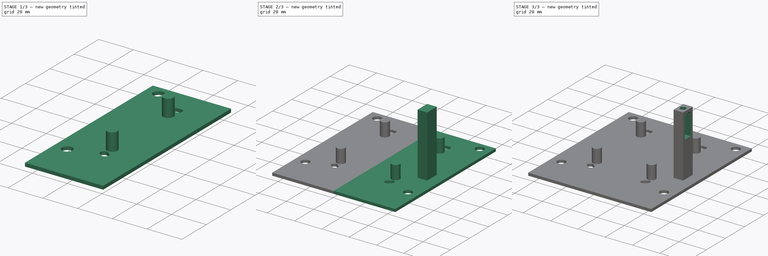
[diagram: build sequence overview — one tinted view per stage of 3, left to right]
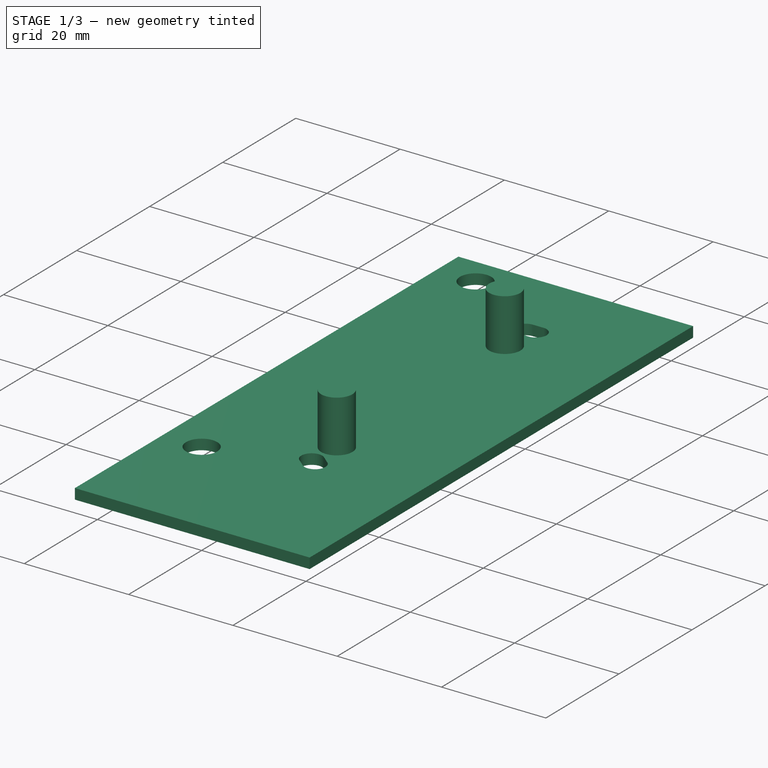
[diagram: stage 1 of 3 — iso view after this stage's code; geometry added in this stage tinted green]
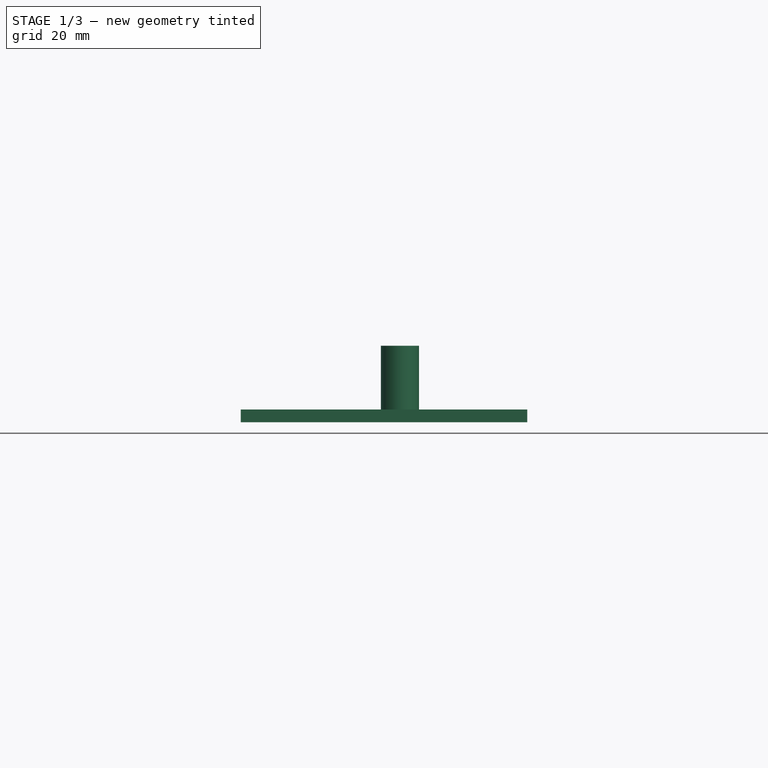
[diagram: stage 1 of 3 — front view after this stage's code; geometry added in this stage tinted green]
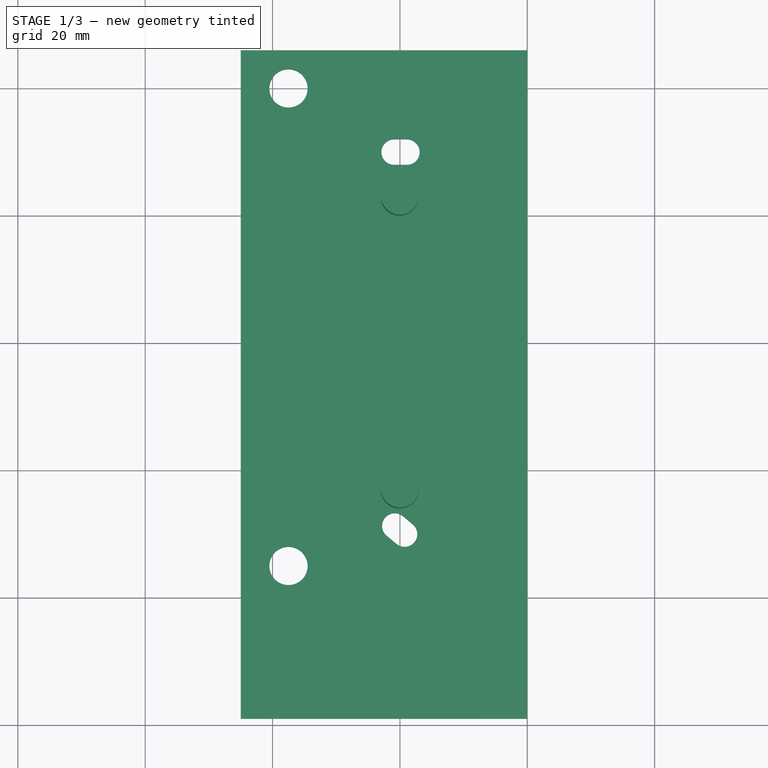
[diagram: stage 1 of 3 — top view after this stage's code; geometry added in this stage tinted green]
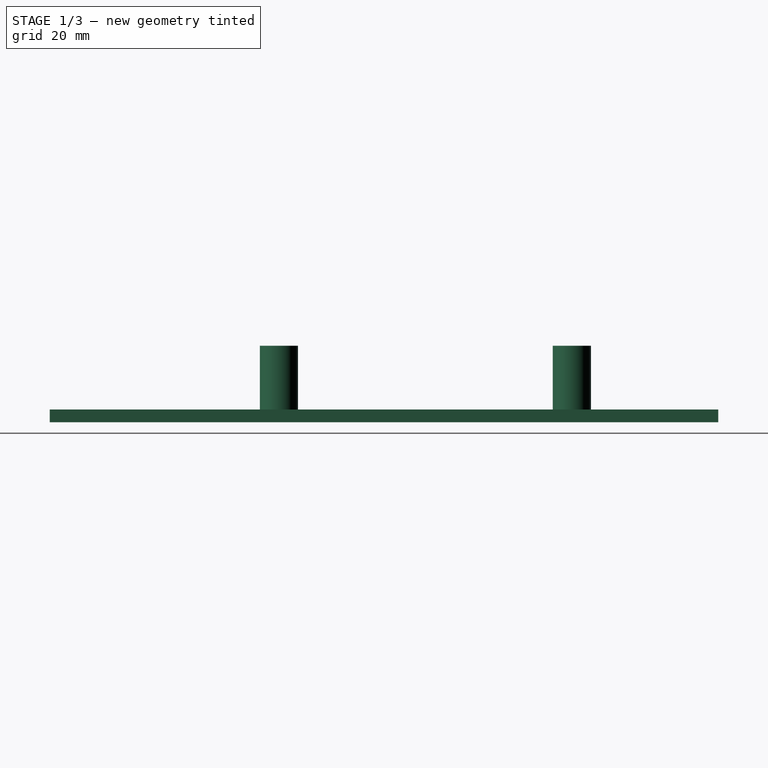
[diagram: stage 1 of 3 — right view after this stage's code; geometry added in this stage tinted green]
FCSTD DOCUMENT  (FreeCAD 0.18.4R)
Label: stabilizer
License: All rights reserved
LicenseURL: http://en.wikipedia.org/wiki/All_rights_reserved
objects: Sketcher::SketchObject×5, PartDesign::Pad×3, PartDesign::Mirrored×2, PartDesign::Pocket×2, PartDesign::Body×1
note: 18 computed .brp shape members not serialized (recipe doc carries the construction recipe); baked Part::Feature solids carry a one-line shape summary decoded from their .brp

FEATURE [Sketcher::SketchObject] Sketch001
  MapMode = 5
  Placement = pos=(0,0,10) rot=(0,0,1;0rad)
  sketch-geometry (25):
    g0: ArcOfCircle CenterX=-20.9 CenterY=30 CenterZ=0 NormalX=0 NormalY=0 NormalZ=1 AngleXU=0 Radius=2 StartAngle=1.5708 EndAngle=4.71239
    g1: ArcOfCircle CenterX=-18.9 CenterY=30 CenterZ=0 NormalX=0 NormalY=0 NormalZ=1 AngleXU=0 Radius=2 StartAngle=4.71239 EndAngle=7.85398
    g2: LineSegment StartX=-20.9 StartY=28 StartZ=0 EndX=-18.9 EndY=28 EndZ=0
    g3: LineSegment StartX=-20.9 StartY=32 StartZ=0 EndX=-18.9 EndY=32 EndZ=0
    g4: ArcOfCircle CenterX=-20.8 CenterY=-28.7144 CenterZ=0 NormalX=0 NormalY=0 NormalZ=1 AngleXU=0 Radius=2 StartAngle=0.872665 EndAngle=4.01426
    g5: ArcOfCircle CenterX=-19.2679 CenterY=-30 CenterZ=0 NormalX=0 NormalY=0 NormalZ=1 AngleXU=0 Radius=2 StartAngle=4.01426 EndAngle=7.15585
    g6: LineSegment StartX=-22.0856 StartY=-30.2465 StartZ=0 EndX=-20.5535 EndY=-31.5321 EndZ=0
    g7: Circle [constr] CenterX=-2e-16 CenterY=-10 CenterZ=0 NormalX=0 NormalY=0 NormalZ=1 AngleXU=0 Radius=10
    g8: LineSegment [constr] StartX=-7.5 StartY=-24 StartZ=0 EndX=7.5 EndY=-24 EndZ=0
    g9: LineSegment [constr] StartX=7.5 StartY=-24 StartZ=0 EndX=7.5 EndY=-34 EndZ=0
    g10: LineSegment [constr] StartX=7.5 StartY=-34 StartZ=0 EndX=-7.5 EndY=-34 EndZ=0
    g11: LineSegment [constr] StartX=-7.5 StartY=-34 StartZ=0 EndX=-7.5 EndY=-24 EndZ=0
    g12: LineSegment [constr] StartX=-24 StartY=34 StartZ=0 EndX=24 EndY=34 EndZ=0
    g13: LineSegment [constr] StartX=24 StartY=34 StartZ=0 EndX=24 EndY=-34 EndZ=0
    g14: LineSegment [constr] StartX=24 StartY=-34 StartZ=0 EndX=-24 EndY=-34 EndZ=0
    g15: LineSegment [constr] StartX=-24 StartY=-34 StartZ=0 EndX=-24 EndY=34 EndZ=0
    g16: LineSegment StartX=-19.5144 StartY=-27.1823 StartZ=0 EndX=-17.9823 EndY=-28.4679 EndZ=0
    g17: LineSegment [constr] StartX=-19.5144 StartY=-27.1823 StartZ=0 EndX=-20.8 EndY=-28.7144 EndZ=0
    g18: LineSegment StartX=-45 StartY=46 StartZ=0 EndX=0 EndY=46 EndZ=0
    g19: LineSegment StartX=0 StartY=46 StartZ=0 EndX=0 EndY=-59 EndZ=0
    g20: LineSegment StartX=0 StartY=-59 StartZ=0 EndX=-45 EndY=-59 EndZ=0
    g21: LineSegment StartX=-45 StartY=-59 StartZ=0 EndX=-45 EndY=46 EndZ=0
    g22: Circle CenterX=-37.5 CenterY=40 CenterZ=0 NormalX=0 NormalY=0 NormalZ=1 AngleXU=0 Radius=3
    g23: Circle CenterX=-37.5 CenterY=-35 CenterZ=0 NormalX=0 NormalY=0 NormalZ=1 AngleXU=0 Radius=3
    g24: LineSegment [constr] StartX=-37.5 StartY=40 StartZ=0 EndX=-37.5 EndY=-35 EndZ=0
  constraints (69):
    c: Tangent(g0,g3) = 1.5708
    c: Tangent(g0,g2) = -1.5708
    c: Tangent(g2,g1) = -1.5708
    c: Tangent(g3,g1) = 1.5708
    c: Horizontal(g2)
    c: Equal(g0,g1)
    c: DistanceX(g0,g1) = 2
    c: DistanceY(g1,g1) = 4
    c: Tangent(g4,g6) = -1.5708
    c: Tangent(g6,g5) = -1.5708
    c: Equal(g4,g5)
    c: Distance(g5,g5) = 4
    c: Distance(g4,g5) = 2
    c: Radius(g7) = 10
    c: Coincident(g8,g9)
    c: Coincident(g9,g10)
    c: Coincident(g10,g11)
    c: Coincident(g11,g8)
    c: Horizontal(g8)
    c: Vertical(g9)
    c: Vertical(g11)
    c: DistanceX(g10,g9) = 15
    c: DistanceY(g9,g8) = 10
    c: Symmetric(g10,g9,g-2)
    c: Coincident(g12,g13)
    c: Coincident(g13,g14)
    c: Coincident(g14,g15)
    c: Coincident(g15,g12)
    c: Horizontal(g12)
    c: Horizontal(g14)
    c: Vertical(g13)
    c: Vertical(g15)
    c: DistanceY(g15,g15) = 68
    c: DistanceX(g12,g12) = 48
    c: Symmetric(g14,g12,g-1)
    c: DistanceY(g14,g7) = 24
    c: DistanceX(g14,g7) = 24
    c: DistanceX(g12,g0) = 3.1
    c: DistanceY(g0,g12) = 4
    c: DistanceX(g14,g4) = 3.2
    c: Angle(g6,g15) = 2.26893
    c: DistanceY(g14,g5) = 4
    c: PointOnObject(g10,g14)
    c: Coincident(g16,g4)
    c: Coincident(g16,g5)
    c: Parallel(g6,g16)
    c: Coincident(g17,g4)
    c: Coincident(g17,g4)
    c: Perpendicular(g16,g17)
    c: Coincident(g18,g19)
    c: Coincident(g19,g20)
    c: Coincident(g20,g21)
    c: Coincident(g21,g18)
    c: Horizontal(g18)
    c: Horizontal(g20)
    c: Vertical(g19)
    c: Vertical(g21)
    c: PointOnObject(g18,g-2)
    c: DistanceY(g19,g14) = 25
    c: DistanceY(g12,g18) = 12
    c: DistanceX(g18,g12) = 21
    c: Radius(g23) = 3
    c: Radius(g22) = 3
    c: Vertical(g24)
    c: Coincident(g24,g22)
    c: Coincident(g24,g23)
    c: DistanceY(g24,g24) = 75
    c: DistanceX(g22,g18) = 37.5
    c: DistanceY(g22,g18) = 6
FEATURE [PartDesign::Pad] Pad  label="base"
  Length = 2
  Length2 = 100
  Placement = pos=(0,0,10) rot=(0,0,1;0rad)
  Profile = -> Sketch001
  Type = 0
FEATURE [Sketcher::SketchObject] Sketch
  ExternalGeometry = -> [Pad]
  MapMode = 5
  Placement = pos=(0,0,12) rot=(0,0,1;0rad)
  Support = -> [Pad]
  sketch-geometry (4):
    g0: Circle CenterX=-20 CenterY=-23 CenterZ=0 NormalX=0 NormalY=0 NormalZ=1 AngleXU=0 Radius=3
    g1: Circle CenterX=-20 CenterY=23 CenterZ=0 NormalX=0 NormalY=0 NormalZ=1 AngleXU=0 Radius=3
    g2: LineSegment [constr] StartX=-20 StartY=23 StartZ=0 EndX=-20 EndY=-23 EndZ=0
    g3: LineSegment [constr] StartX=-20 StartY=0 StartZ=0 EndX=0 EndY=0 EndZ=0
  constraints (11):
    c: Coincident(g1,g2)
    c: Coincident(g0,g2)
    c: PointOnObject(g3,g2)
    c: Vertical(g2)
    c: Horizontal(g3)
    c: Radius(g0) = 3
    c: Radius(g1) = 3
    c: Coincident(g-1,g3)
    c: DistanceX(g3,g3) = 20
    c: DistanceY(g2,g2) = 46
    c: DistanceY(g3,g1) = 23
FEATURE [PartDesign::Pad] Pad001  label="extrusions"
  BaseFeature = -> Pad
  Length = 10
  Length2 = 100
  Placement = pos=(0,0,10) rot=(0,0,1;0rad)
  Profile = -> Sketch
  Type = 0
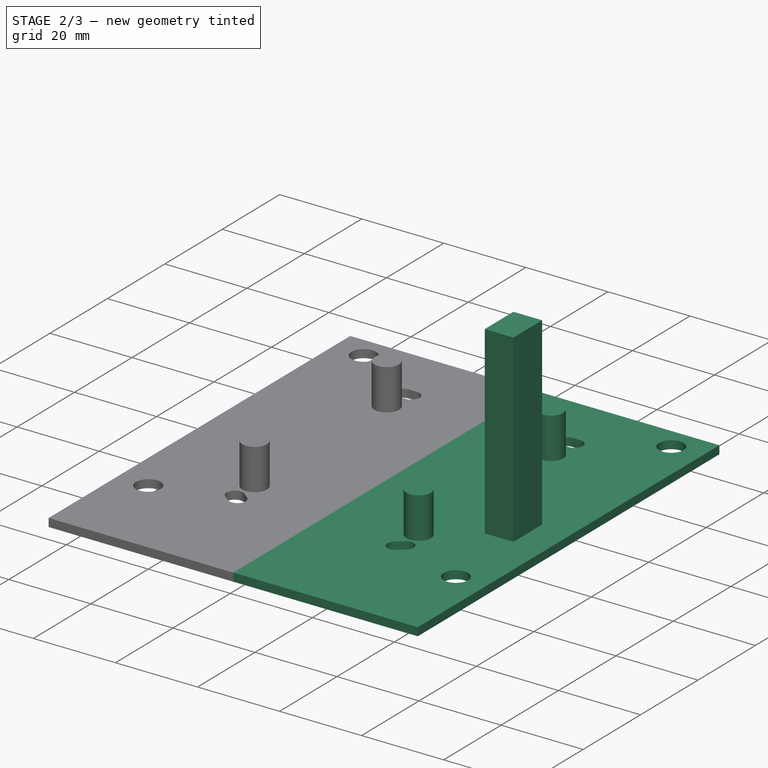
[diagram: stage 2 of 3 — iso view after this stage's code; geometry added in this stage tinted green]
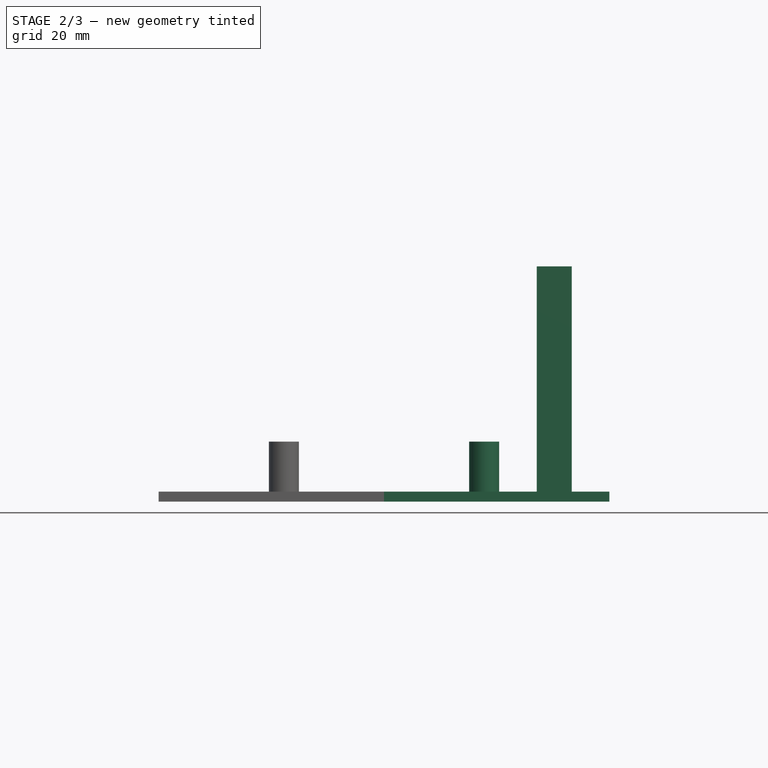
[diagram: stage 2 of 3 — front view after this stage's code; geometry added in this stage tinted green]
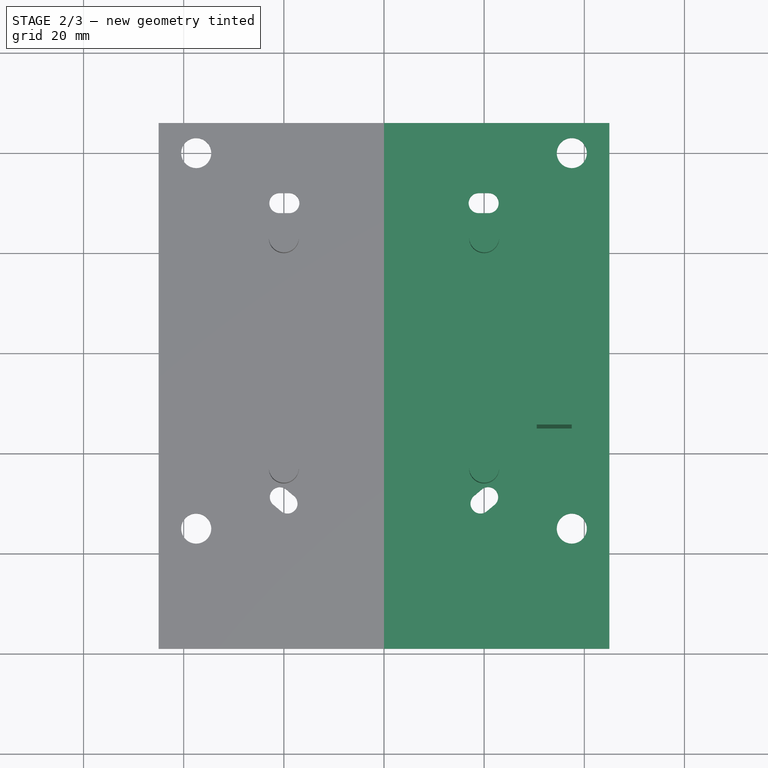
[diagram: stage 2 of 3 — top view after this stage's code; geometry added in this stage tinted green]
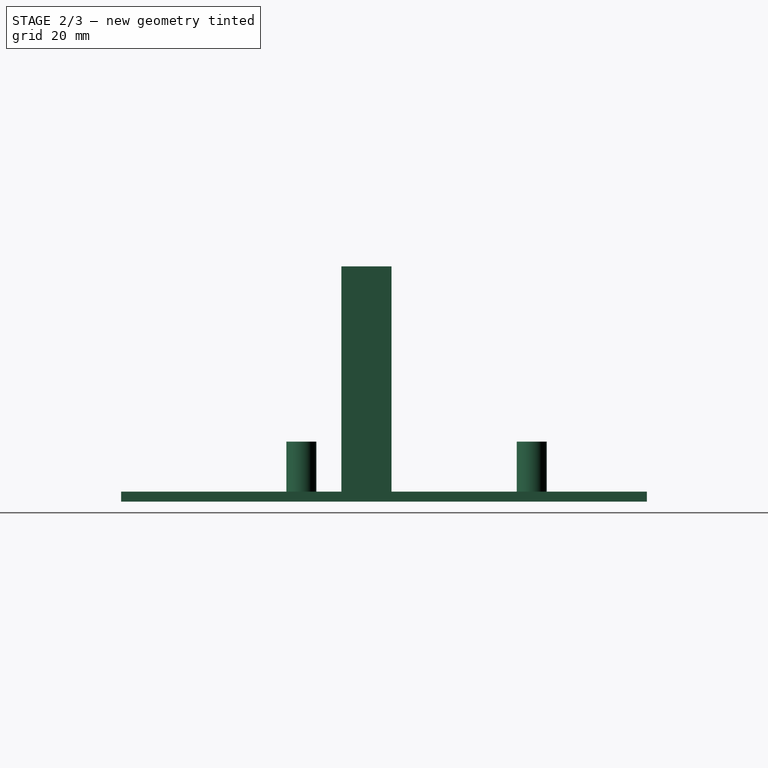
[diagram: stage 2 of 3 — right view after this stage's code; geometry added in this stage tinted green]
FEATURE [PartDesign::Mirrored] Mirrored  label="mirror base"
  BaseFeature = -> Pad001
  MirrorPlane = -> Sketch001 [V_Axis]
  Originals = -> [Pad]
  Placement = pos=(0,0,10) rot=(0,0,1;0rad)
FEATURE [PartDesign::Mirrored] Mirrored001  label="mirror extrusion"
  BaseFeature = -> Mirrored
  MirrorPlane = -> Sketch [V_Axis]
  Originals = -> [Pad001]
  Placement = pos=(0,0,10) rot=(0,0,1;0rad)
FEATURE [Sketcher::SketchObject] Sketch004
  MapMode = 5
  Placement = pos=(0,0,12) rot=(0,0,1;0rad)
  sketch-geometry (5):
    g0: Circle [constr] CenterX=34 CenterY=-10 CenterZ=0 NormalX=0 NormalY=0 NormalZ=1 AngleXU=0 Radius=3.5
    g1: LineSegment StartX=30.5 StartY=-5 StartZ=0 EndX=37.5 EndY=-5 EndZ=0
    g2: LineSegment StartX=37.5 StartY=-5 StartZ=0 EndX=37.5 EndY=-15 EndZ=0
    g3: LineSegment StartX=37.5 StartY=-15 StartZ=0 EndX=30.5 EndY=-15 EndZ=0
    g4: LineSegment StartX=30.5 StartY=-15 StartZ=0 EndX=30.5 EndY=-5 EndZ=0
  constraints (15):
    c: DistanceX(g-1,g0) = 34
    c: Radius(g0) = 3.5
    c: DistanceY(g0,g-1) = 10
    c: Coincident(g1,g2)
    c: Coincident(g2,g3)
    c: Coincident(g3,g4)
    c: Coincident(g4,g1)
    c: Horizontal(g1)
    c: Horizontal(g3)
    c: Vertical(g2)
    c: Vertical(g4)
    c: Tangent(g4,g0)
    c: Tangent(g2,g0)
    c: DistanceY(g0,g1) = 5
    c: DistanceY(g3,g1) = 10
FEATURE [PartDesign::Pad] Pad003  label="TCRT5000base"
  BaseFeature = -> Mirrored001
  Length = 45
  Length2 = 100
  Placement = pos=(0,0,10) rot=(0,0,1;0rad)
  Profile = -> Sketch004
  Type = 0
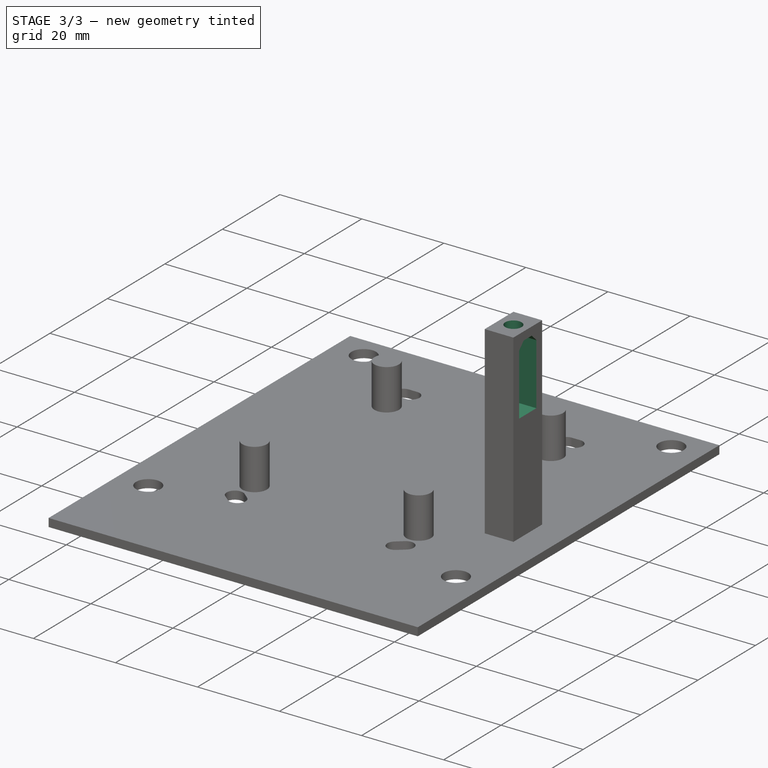
[diagram: stage 3 of 3 — iso view after this stage's code; geometry added in this stage tinted green]
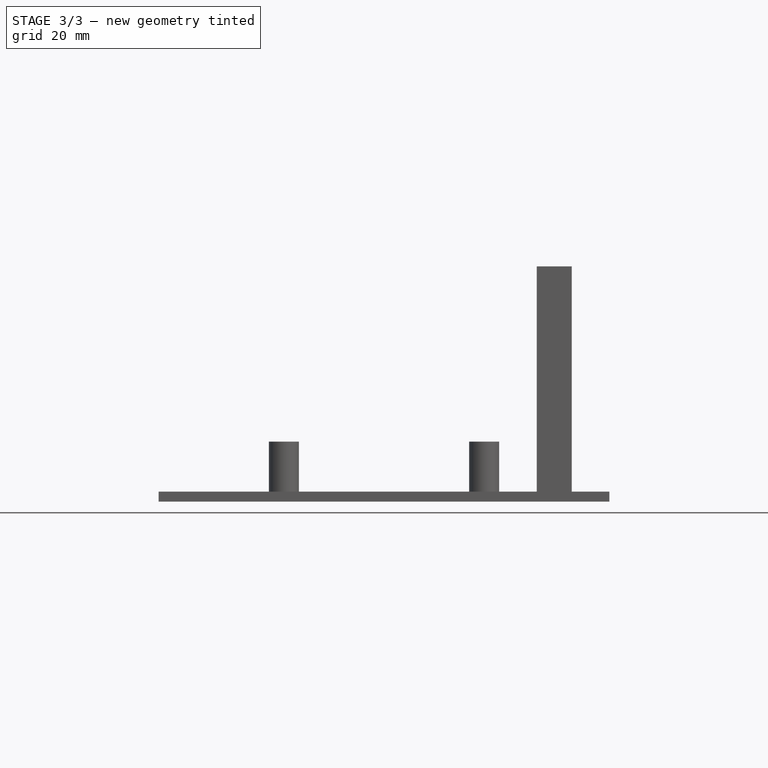
[diagram: stage 3 of 3 — front view after this stage's code; geometry added in this stage tinted green]
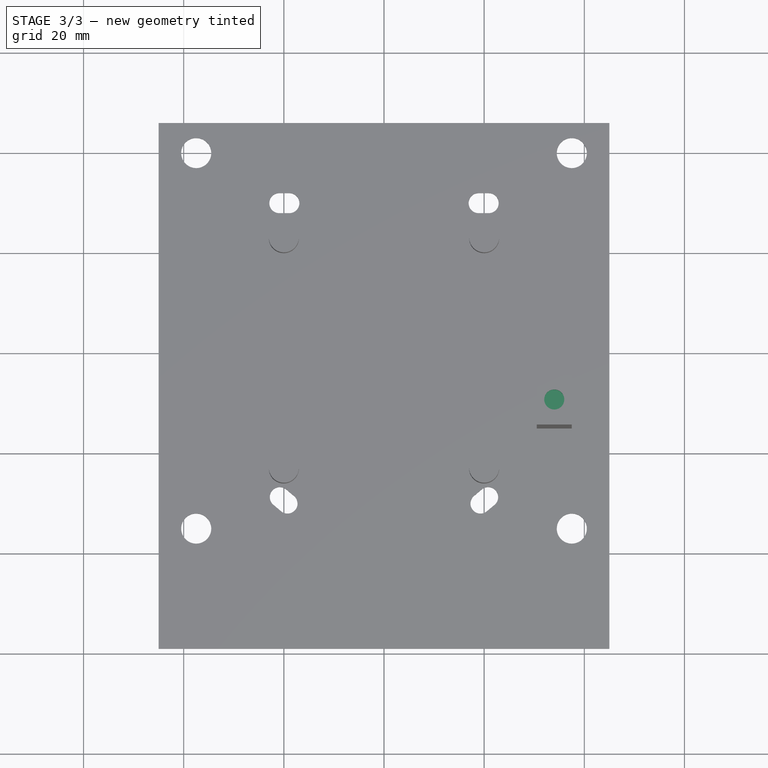
[diagram: stage 3 of 3 — top view after this stage's code; geometry added in this stage tinted green]
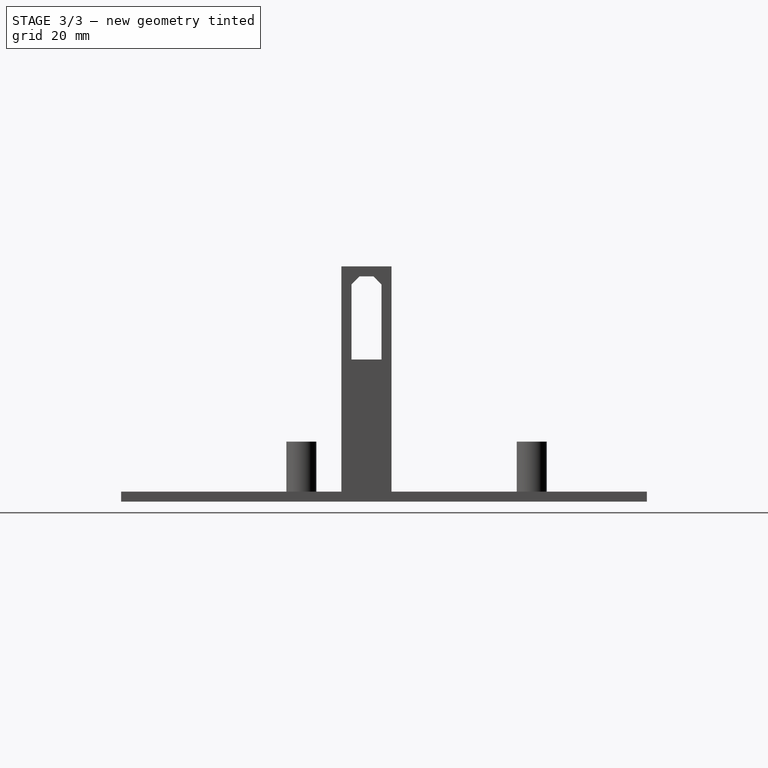
[diagram: stage 3 of 3 — right view after this stage's code; geometry added in this stage tinted green]
FEATURE [Sketcher::SketchObject] Sketch005
  ExternalGeometry = -> [Pad003]
  MapMode = 5
  Placement = pos=(37.5,0,10) rot=(0.57735,0.57735,0.57735;2.0944rad)
  Support = -> [Pad003]
  sketch-geometry (10):
    g0: LineSegment StartX=-7 StartY=28.39 StartZ=0 EndX=-13 EndY=28.39 EndZ=0
    g1: LineSegment StartX=-11.4 StartY=45 StartZ=0 EndX=-13 EndY=43.39 EndZ=0
    g2: LineSegment StartX=-8.6 StartY=45 StartZ=0 EndX=-7 EndY=43.39 EndZ=0
    g3: LineSegment [constr] StartX=-7 StartY=45 StartZ=0 EndX=-7 EndY=43.39 EndZ=0
    g4: LineSegment [constr] StartX=-13 StartY=45 StartZ=0 EndX=-13 EndY=43.39 EndZ=0
    g5: LineSegment StartX=-13 StartY=43.39 StartZ=0 EndX=-13 EndY=28.39 EndZ=0
    g6: LineSegment StartX=-7 StartY=43.39 StartZ=0 EndX=-7 EndY=28.39 EndZ=0
    g7: LineSegment StartX=-11.4 StartY=45 StartZ=0 EndX=-8.6 EndY=45 EndZ=0
    g8: LineSegment [constr] StartX=-13 StartY=45 StartZ=0 EndX=-11.4 EndY=45 EndZ=0
    g9: LineSegment [constr] StartX=-8.6 StartY=45 StartZ=0 EndX=-7 EndY=45 EndZ=0
  constraints (28):
    c: Horizontal(g8)
    c: Vertical(g5)
    c: Vertical(g6)
    c: Horizontal(g7)
    c: Vertical(g4)
    c: Vertical(g3)
    c: Horizontal(g9)
    c: Horizontal(g0)
    c: Coincident(g4,g8)
    c: Coincident(g1,g7)
    c: Coincident(g8,g1)
    c: Coincident(g4,g5)
    c: Coincident(g5,g1)
    c: Coincident(g7,g2)
    c: Coincident(g9,g2)
    c: Coincident(g3,g9)
    c: Coincident(g3,g2)
    c: Coincident(g6,g3)
    c: Coincident(g6,g0)
    c: Coincident(g0,g5)
    c: DistanceY(g1,g4) = 1.61
    c: DistanceY(g5,g5) = 15
    c: Equal(g3,g4)
    c: Equal(g8,g9)
    c: DistanceY(g4,g-3) = 2
    c: DistanceX(g-3,g4) = 2
    c: DistanceX(g8,g8) = 1.6
    c: DistanceX(g3,g-3) = 2
FEATURE [PartDesign::Pocket] Pocket001  label="TCRT5000sidecut"
  BaseFeature = -> Pad003
  Length = 5
  Length2 = 100
  Placement = pos=(0,0,10) rot=(0,0,1;0rad)
  Profile = -> Sketch005
  Type = 1
FEATURE [Sketcher::SketchObject] Sketch006
  ExternalGeometry = -> [Pocket001]
  MapMode = 5
  Placement = pos=(0,0,57) rot=(0,0,1;0rad)
  Support = -> [Pocket001]
  sketch-geometry (1):
    g0: Circle CenterX=34 CenterY=-10 CenterZ=0 NormalX=0 NormalY=0 NormalZ=1 AngleXU=0 Radius=2
  constraints (3):
    c: Radius(g0) = 2
    c: DistanceX(g-3,g0) = 3.5
    c: DistanceY(g0,g-3) = 5
FEATURE [PartDesign::Pocket] Pocket002  label="TCRT5000screwhole"
  BaseFeature = -> Pocket001
  Length = 5
  Length2 = 100
  Placement = pos=(0,0,10) rot=(0,0,1;0rad)
  Profile = -> Sketch006
  Type = 0
FEATURE [PartDesign::Body] Body
  Group = -> [Sketch001,Pad,Sketch,Pad001,Mirrored,Mirrored001,Sketch004,Pad003,Sketch005,Pocket001,Sketch006,Pocket002]
  Origin = -> Origin
  Tip = -> Pocket002
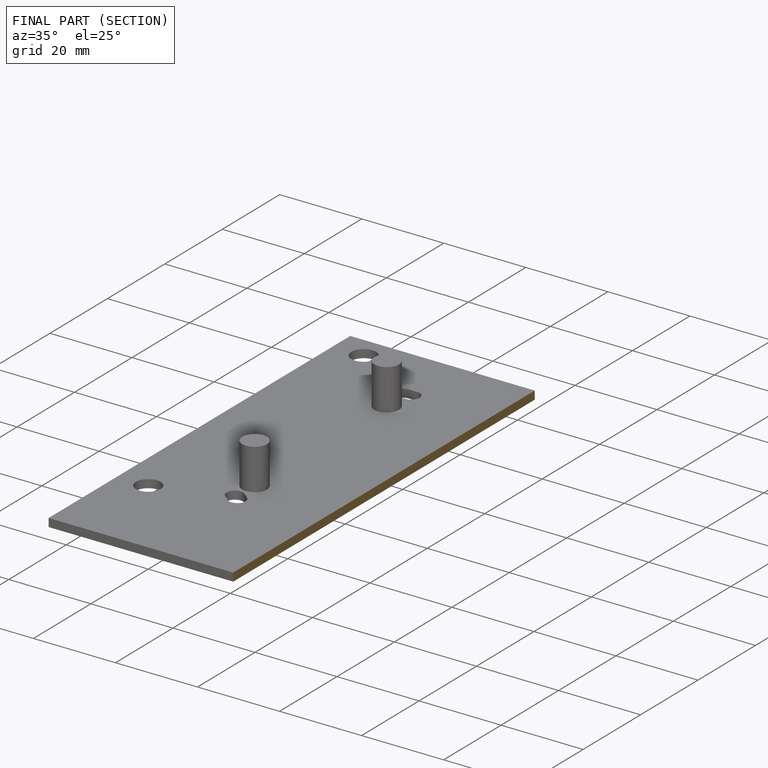
[diagram: finished part — half-section view (interior)]
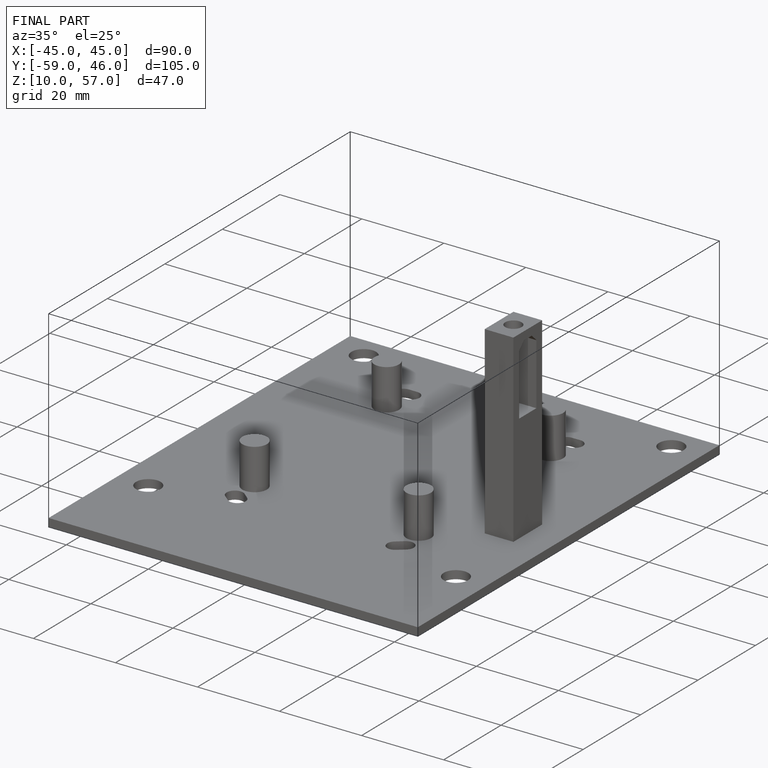
[diagram: finished part — iso view with bounding-box wireframe]
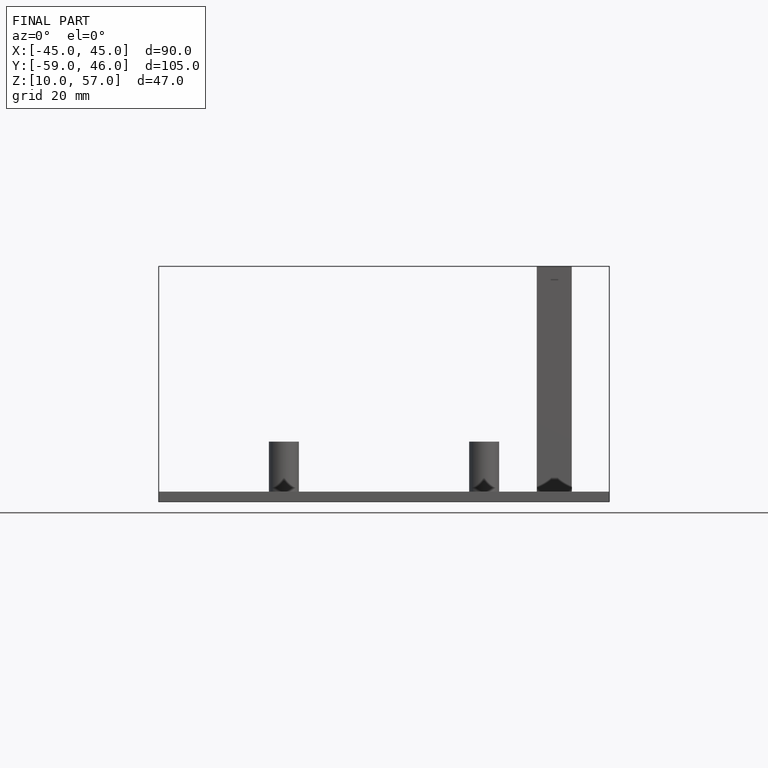
[diagram: finished part — front view with bounding-box wireframe]
